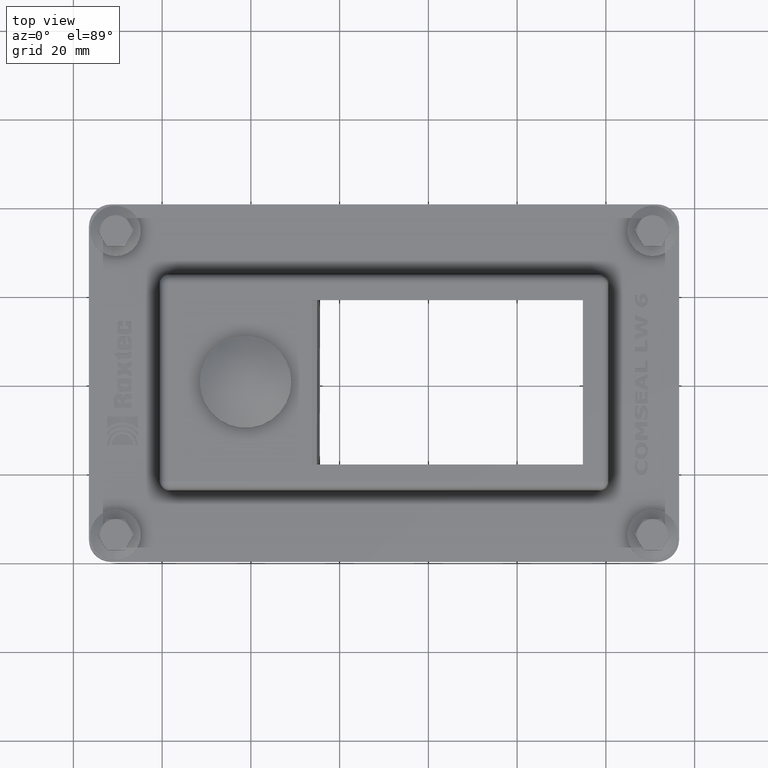
[diagram: clean part render]
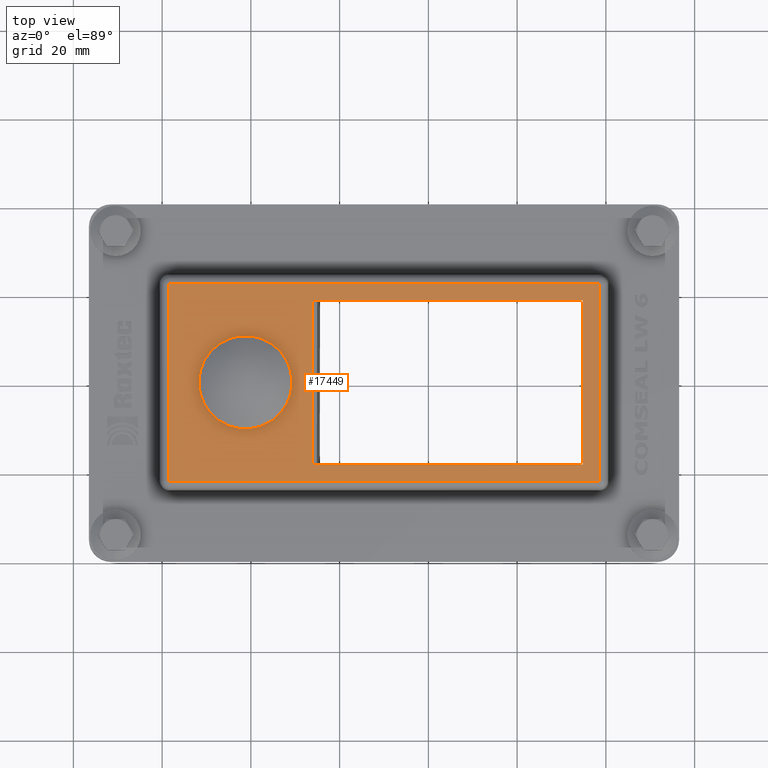
[diagram: same view with one face highlighted and labeled with its STEP entity id]
A machine part, top view. The second image highlights one B-rep face of the part: STEP entity #17449.
In plain terms, the highlighted planar face has unit normal (0, 0, 1).
Its self-contained STEP definition (entity closure, byte-faithful):
#17067=CARTESIAN_POINT('',(38.517377578810056,-22.26737757881002,23.0));
#17068=VERTEX_POINT('',#17067);
#17076=CARTESIAN_POINT('',(-58.517377578810056,-22.26737757881002,23.0));
#17077=VERTEX_POINT('',#17076);
#17078=CARTESIAN_POINT('',(38.517377578810056,-22.26737757881002,23.0));
#17079=DIRECTION('',(-1.0,0.0,0.0));
#17080=VECTOR('',#17079,97.034755157620111);
#17081=LINE('',#17078,#17080);
#17082=EDGE_CURVE('',#17068,#17077,#17081,.T.);
#17107=CARTESIAN_POINT('',(-58.51737757881007,22.267377578810038,23.0));
#17108=VERTEX_POINT('',#17107);
#17109=CARTESIAN_POINT('',(-58.517377578810049,-22.267377578810024,23.0));
#17110=DIRECTION('',(0.0,1.0,0.0));
#17111=VECTOR('',#17110,44.534755157620062);
#17112=LINE('',#17109,#17111);
#17113=EDGE_CURVE('',#17077,#17108,#17112,.T.);
#17156=CARTESIAN_POINT('',(38.517377578810056,22.267377578810049,23.0));
#17157=VERTEX_POINT('',#17156);
#17158=CARTESIAN_POINT('',(-58.51737757881007,22.267377578810038,23.0));
#17159=DIRECTION('',(1.0,0.0,0.0));
#17160=VECTOR('',#17159,97.034755157620111);
#17161=LINE('',#17158,#17160);
#17162=EDGE_CURVE('',#17108,#17157,#17161,.T.);
#17213=CARTESIAN_POINT('',(38.517377578810056,22.267377578810052,23.0));
#17214=DIRECTION('',(0.0,-1.0,0.0));
#17215=VECTOR('',#17214,44.534755157620069);
#17216=LINE('',#17213,#17215);
#17217=EDGE_CURVE('',#17157,#17068,#17216,.T.);
#17393=CARTESIAN_POINT('',(-9.999999999999996,1.424556E-014,23.0));
#17394=DIRECTION('',(0.0,0.0,1.0));
#17395=DIRECTION('',(1.0,0.0,0.0));
#17396=AXIS2_PLACEMENT_3D('',#17393,#17394,#17395);
#17397=PLANE('',#17396);
#17398=ORIENTED_EDGE('',*,*,#17113,.F.);
#17399=ORIENTED_EDGE('',*,*,#17082,.F.);
#17400=ORIENTED_EDGE('',*,*,#17217,.F.);
#17401=ORIENTED_EDGE('',*,*,#17162,.F.);
#17402=EDGE_LOOP('',(#17398,#17399,#17400,#17401));
#17403=FACE_OUTER_BOUND('',#17402,.T.);
#17404=CARTESIAN_POINT('',(-26.220740230695718,18.550000000000011,23.0));
#17405=VERTEX_POINT('',#17404);
#17406=CARTESIAN_POINT('',(34.800000000000026,18.550000000000026,23.000000000000004));
#17407=VERTEX_POINT('',#17406);
#17408=CARTESIAN_POINT('',(-26.220740230695718,18.550000000000008,23.0));
#17409=DIRECTION('',(1.0,0.0,0.0));
#17410=VECTOR('',#17409,61.020740230695729);
#17411=LINE('',#17408,#17410);
#17412=EDGE_CURVE('',#17405,#17407,#17411,.T.);
#17413=ORIENTED_EDGE('',*,*,#17412,.T.);
#17414=CARTESIAN_POINT('',(34.800000000000026,-18.550000000000001,23.000000000000004));
#17415=VERTEX_POINT('',#17414);
#17416=CARTESIAN_POINT('',(34.800000000000026,18.550000000000026,23.0));
#17417=DIRECTION('',(0.0,-1.0,0.0));
#17418=VECTOR('',#17417,37.100000000000023);
#17419=LINE('',#17416,#17418);
#17420=EDGE_CURVE('',#17407,#17415,#17419,.T.);
#17421=ORIENTED_EDGE('',*,*,#17420,.T.);
#17422=CARTESIAN_POINT('',(-26.220740230695718,-18.550000000000001,23.0));
#17423=VERTEX_POINT('',#17422);
#17424=CARTESIAN_POINT('',(34.800000000000026,-18.550000000000001,23.0));
#17425=DIRECTION('',(-1.0,0.0,0.0));
#17426=VECTOR('',#17425,61.020740230695743);
#17427=LINE('',#17424,#17426);
#17428=EDGE_CURVE('',#17415,#17423,#17427,.T.);
#17429=ORIENTED_EDGE('',*,*,#17428,.T.);
#17430=CARTESIAN_POINT('',(-26.220740230695718,-18.550000000000004,23.0));
#17431=DIRECTION('',(0.0,1.0,0.0));
#17432=VECTOR('',#17431,37.100000000000016);
#17433=LINE('',#17430,#17432);
#17434=EDGE_CURVE('',#17423,#17405,#17433,.T.);
#17435=ORIENTED_EDGE('',*,*,#17434,.T.);
#17436=EDGE_LOOP('',(#17413,#17421,#17429,#17435));
#17437=FACE_BOUND('',#17436,.T.);
#17438=CARTESIAN_POINT('',(-30.720740230695725,1.285837E-015,23.0));
#17439=VERTEX_POINT('',#17438);
#17440=CARTESIAN_POINT('',(-41.220740230695725,1.501632E-031,23.0));
#17441=DIRECTION('',(0.0,0.0,1.0));
#17442=DIRECTION('',(-1.0,0.0,0.0));
#17443=AXIS2_PLACEMENT_3D('',#17440,#17441,#17442);
#17444=CIRCLE('',#17443,10.5);
#17445=EDGE_CURVE('',#17439,#17439,#17444,.T.);
#17446=ORIENTED_EDGE('',*,*,#17445,.F.);
#17447=EDGE_LOOP('',(#17446));
#17448=FACE_BOUND('',#17447,.T.);
#17449=ADVANCED_FACE('',(#17403,#17437,#17448),#17397,.T.);